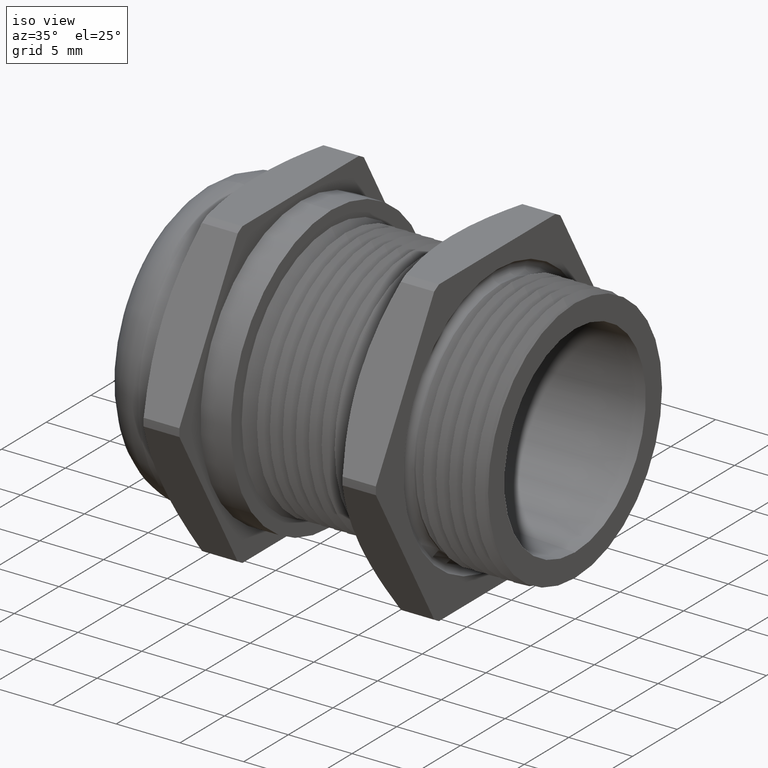
[diagram: clean part render]
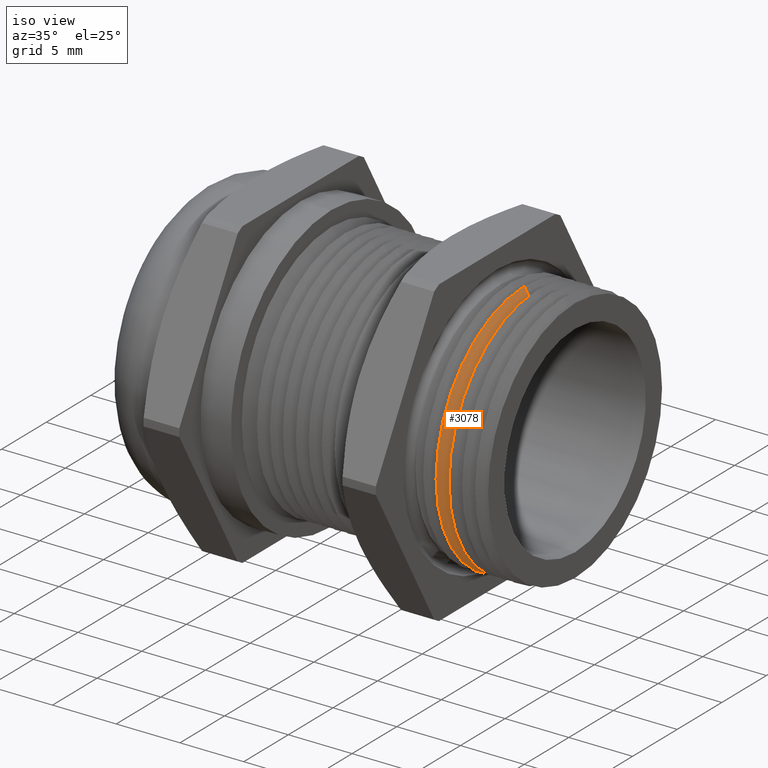
[diagram: same view with one face highlighted and labeled with its STEP entity id]
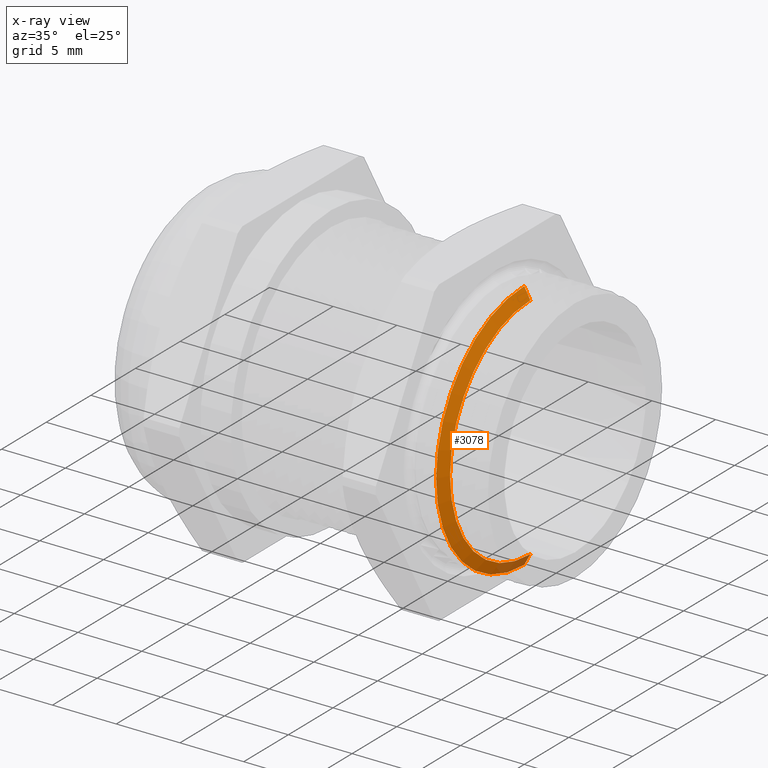
[diagram: x-ray of the same camera — body ghosted, the highlighted face saturated]
A machine part, iso view. The second image highlights one B-rep face of the part: STEP entity #3078.
The next image is the same camera in x-ray: the body ghosted, the highlighted face saturated — about 5% of this face is hidden behind the body in this view.
In plain terms, the highlighted conical surface has half-angle 61.5 deg.
Its self-contained STEP definition (entity closure, byte-faithful):
#1654 = DIRECTION ( 'NONE',  ( 0.0000000000000000000, 0.0000000000000000000, 1.000000000000000000 ) ) ;
#1655 = DIRECTION ( 'NONE',  ( -1.000000000000000000, 0.0000000000000000000, 0.0000000000000000000 ) ) ;
#1656 = CARTESIAN_POINT ( 'NONE',  ( 0.4299999999999997700, 0.0000000000000000000, 4.972524483591020500E-018 ) ) ;
#1657 = AXIS2_PLACEMENT_3D ( 'NONE', #1656, #1655, #1654 ) ;
#1659 = CONICAL_SURFACE ( 'NONE', #1657, 0.3950000000000000200, 1.073377489976520900 ) ;
#1660 = FACE_OUTER_BOUND ( 'NONE', #3079, .T. ) ;
#1863 = DIRECTION ( 'NONE',  ( 0.0000000000000000000, 0.0000000000000000000, 1.000000000000000000 ) ) ;
#1864 = DIRECTION ( 'NONE',  ( -1.000000000000000000, 0.0000000000000000000, 0.0000000000000000000 ) ) ;
#1865 = CARTESIAN_POINT ( 'NONE',  ( 0.4332476662315719000, 0.0000000000000000000, 2.486262241795510300E-018 ) ) ;
#1866 = AXIS2_PLACEMENT_3D ( 'NONE', #1865, #1864, #1863 ) ;
#1871 = CIRCLE ( 'NONE', #1866, 0.3890185428871364400 ) ;
#1967 = DIRECTION ( 'NONE',  ( -1.000000000000000000, 0.0000000000000000000, 0.0000000000000000000 ) ) ;
#1968 = CARTESIAN_POINT ( 'NONE',  ( 0.4520390190945651800, 0.0000000000000000000, 4.972524483591020500E-018 ) ) ;
#1969 = AXIS2_PLACEMENT_3D ( 'NONE', #1968, #1967, #2030 ) ;
#1974 = CIRCLE ( 'NONE', #1969, 0.3544091762748932100 ) ;
#2030 = DIRECTION ( 'NONE',  ( 0.0000000000000000000, 0.0000000000000000000, 1.000000000000000000 ) ) ;
#2223 = CARTESIAN_POINT ( 'NONE',  ( 0.4332476662315719000, 0.0000000000000000000, -0.3890185428871363900 ) ) ;
#2276 = DIRECTION ( 'NONE',  ( -0.4771587602596011900, 0.0000000000000000000, 0.8788171126619692700 ) ) ;
#2277 = VECTOR ( 'NONE', #2276, 39.37007874015748100 ) ;
#2278 = CARTESIAN_POINT ( 'NONE',  ( 0.4299999999999997700, 0.0000000000000000000, 0.3950000000000000200 ) ) ;
#2279 = LINE ( 'NONE', #2278, #2277 ) ;
#2280 = CARTESIAN_POINT ( 'NONE',  ( 0.4332476662315719000, 4.764103133556988900E-017, 0.3890185428871363900 ) ) ;
#2427 = DIRECTION ( 'NONE',  ( -0.4771587602596011900, 1.076240564057399600E-016, -0.8788171126619692700 ) ) ;
#2428 = VECTOR ( 'NONE', #2427, 39.37007874015748100 ) ;
#2429 = CARTESIAN_POINT ( 'NONE',  ( 0.4299999999999997700, 4.837354856632045600E-017, -0.3950000000000000200 ) ) ;
#2430 = LINE ( 'NONE', #2429, #2428 ) ;
#2431 = CARTESIAN_POINT ( 'NONE',  ( 0.4520390190945651800, 0.0000000000000000000, -0.3544091762748932100 ) ) ;
#2432 = CARTESIAN_POINT ( 'NONE',  ( 0.4520390190945651800, 4.552181883345984800E-017, 0.3544091762748932100 ) ) ;
#3078 = ADVANCED_FACE ( 'NONE', ( #1660 ), #1659, .T. ) ;
#3079 = EDGE_LOOP ( 'NONE', ( #3080, #3081, #3082, #3083 ) ) ;
#3080 = ORIENTED_EDGE ( 'NONE', *, *, #3451, .F. ) ;
#3081 = ORIENTED_EDGE ( 'NONE', *, *, #3245, .T. ) ;
#3082 = ORIENTED_EDGE ( 'NONE', *, *, #3374, .T. ) ;
#3083 = ORIENTED_EDGE ( 'NONE', *, *, #3171, .F. ) ;
#3171 = EDGE_CURVE ( 'NONE', #3369, #3372, #1871, .T. ) ;
#3245 = EDGE_CURVE ( 'NONE', #3449, #3448, #1974, .T. ) ;
#3369 = VERTEX_POINT ( 'NONE', #2223 ) ;
#3372 = VERTEX_POINT ( 'NONE', #2280 ) ;
#3374 = EDGE_CURVE ( 'NONE', #3448, #3372, #2279, .T. ) ;
#3448 = VERTEX_POINT ( 'NONE', #2432 ) ;
#3449 = VERTEX_POINT ( 'NONE', #2431 ) ;
#3451 = EDGE_CURVE ( 'NONE', #3449, #3369, #2430, .T. ) ;